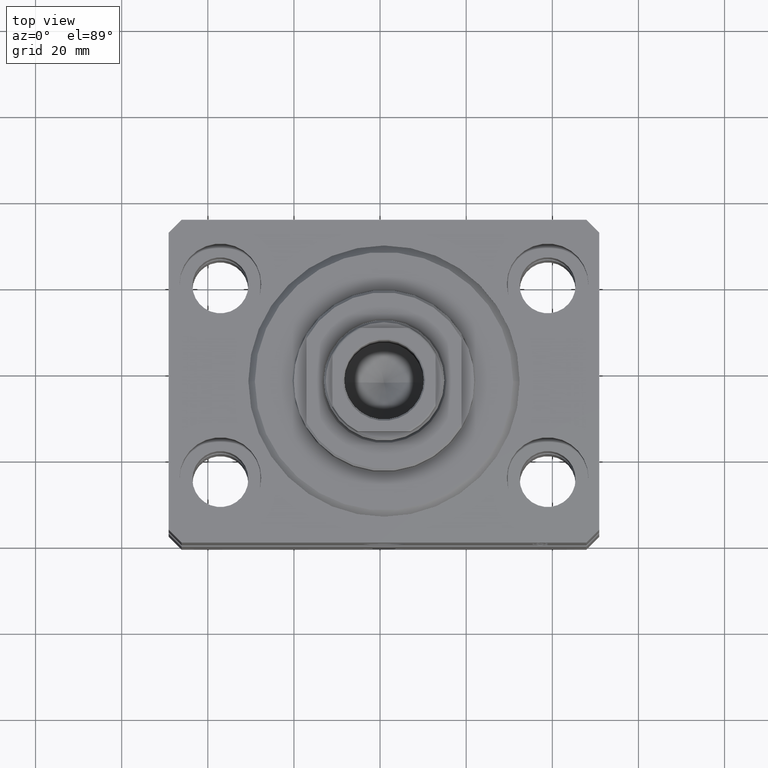
[diagram: clean part render]
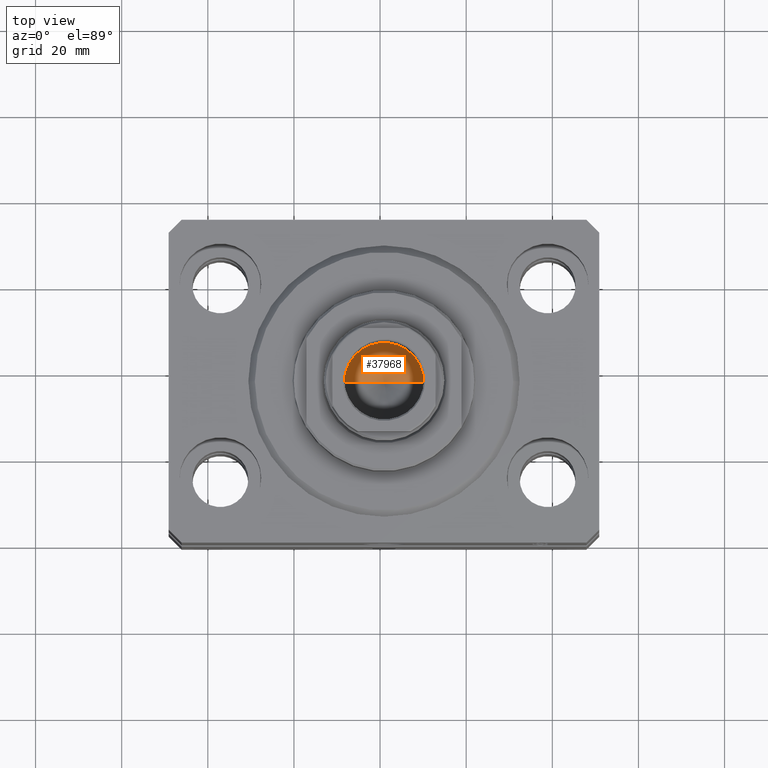
[diagram: same view with one face highlighted and labeled with its STEP entity id]
A machine part, top view. The second image highlights one B-rep face of the part: STEP entity #37968.
In plain terms, the highlighted conical surface has half-angle 59 deg.
Its self-contained STEP definition (entity closure, byte-faithful):
#41 = CIRCLE ( 'NONE', #35585, 9.249999999999994671 ) ;
#160 = LINE ( 'NONE', #13117, #25727 ) ;
#1694 = CARTESIAN_POINT ( 'NONE',  ( 0.000000000000000000, 0.000000000000000000, 68.09999999999999432 ) ) ;
#2746 = VERTEX_POINT ( 'NONE', #21821 ) ;
#6628 = DIRECTION ( 'NONE',  ( -0.000000000000000000, -0.000000000000000000, 1.000000000000000000 ) ) ;
#6965 = EDGE_CURVE ( 'NONE', #44716, #15756, #41, .T. ) ;
#7061 = VECTOR ( 'NONE', #16610, 1000.000000000000000 ) ;
#8523 = FACE_OUTER_BOUND ( 'NONE', #44456, .T. ) ;
#12584 = DIRECTION ( 'NONE',  ( 1.000000000000000000, 0.000000000000000000, 0.000000000000000000 ) ) ;
#13117 = CARTESIAN_POINT ( 'NONE',  ( 9.249999999999994671, 0.000000000000000000, 68.09999999999999432 ) ) ;
#13247 = CARTESIAN_POINT ( 'NONE',  ( -9.249999999999994671, 1.132798289211300909E-15, 68.09999999999999432 ) ) ;
#15756 = VERTEX_POINT ( 'NONE', #13247 ) ;
#16520 = DIRECTION ( 'NONE',  ( 0.8571673007021117785, 0.000000000000000000, 0.5150380749100550437 ) ) ;
#16610 = DIRECTION ( 'NONE',  ( -0.8571673007021117785, 1.049727191138617956E-16, 0.5150380749100550437 ) ) ;
#21102 = EDGE_CURVE ( 'NONE', #2746, #44716, #160, .T. ) ;
#21476 = CONICAL_SURFACE ( 'NONE', #34562, 9.249999999999994671, 1.029744258676653423 ) ;
#21550 = ORIENTED_EDGE ( 'NONE', *, *, #21102, .T. ) ;
#21821 = CARTESIAN_POINT ( 'NONE',  ( -1.046994375366439223E-14, 0.000000000000000000, 62.54203927399505858 ) ) ;
#24104 = CARTESIAN_POINT ( 'NONE',  ( -9.249999999999994671, 1.132798289211300909E-15, 68.09999999999999432 ) ) ;
#25727 = VECTOR ( 'NONE', #16520, 1000.000000000000000 ) ;
#29416 = DIRECTION ( 'NONE',  ( -0.000000000000000000, -0.000000000000000000, 1.000000000000000000 ) ) ;
#31153 = DIRECTION ( 'NONE',  ( 1.000000000000000000, 0.000000000000000000, 0.000000000000000000 ) ) ;
#34562 = AXIS2_PLACEMENT_3D ( 'NONE', #1694, #29416, #12584 ) ;
#34855 = CARTESIAN_POINT ( 'NONE',  ( 9.249999999999994671, 0.000000000000000000, 68.09999999999999432 ) ) ;
#35585 = AXIS2_PLACEMENT_3D ( 'NONE', #41365, #6628, #31153 ) ;
#37968 = ADVANCED_FACE ( 'NONE', ( #8523 ), #21476, .F. ) ;
#38785 = ORIENTED_EDGE ( 'NONE', *, *, #6965, .T. ) ;
#39637 = ORIENTED_EDGE ( 'NONE', *, *, #41515, .F. ) ;
#41362 = LINE ( 'NONE', #24104, #7061 ) ;
#41365 = CARTESIAN_POINT ( 'NONE',  ( 0.000000000000000000, 0.000000000000000000, 68.09999999999999432 ) ) ;
#41515 = EDGE_CURVE ( 'NONE', #2746, #15756, #41362, .T. ) ;
#44456 = EDGE_LOOP ( 'NONE', ( #39637, #21550, #38785 ) ) ;
#44716 = VERTEX_POINT ( 'NONE', #34855 ) ;